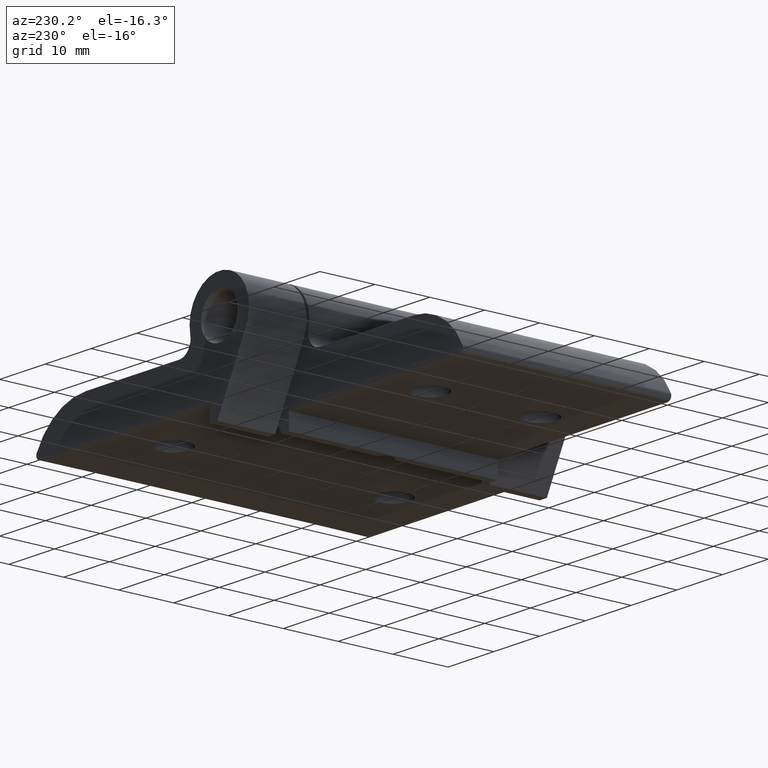
[diagram: clean part render]
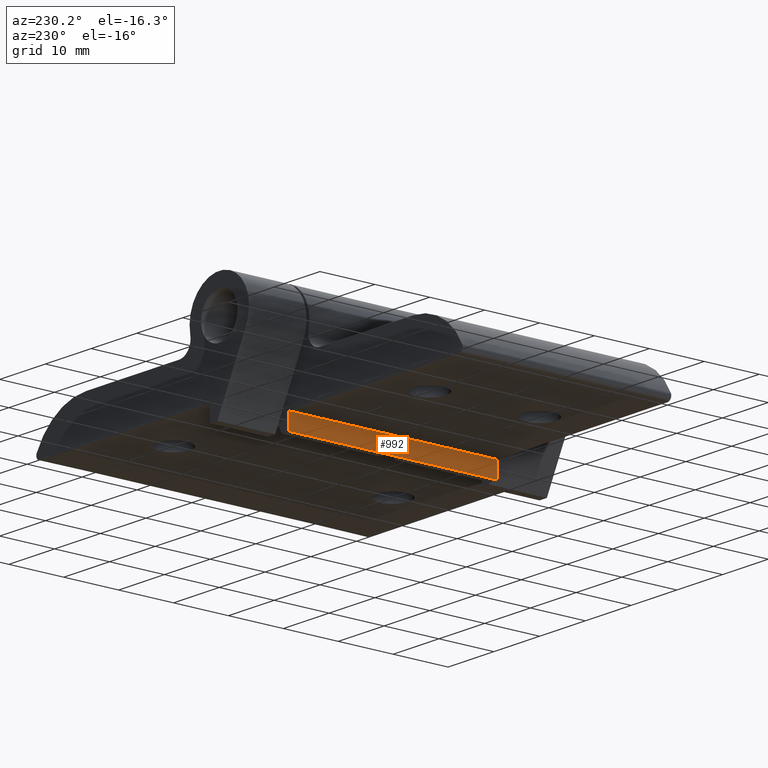
[diagram: same view with one face highlighted and labeled with its STEP entity id]
A machine part, auxiliary view. The second image highlights one B-rep face of the part: STEP entity #992.
In plain terms, the highlighted planar face has unit normal (-1, 0, -0).
Its self-contained STEP definition (entity closure, byte-faithful):
#84=PLANE('',#1156);
#149=FACE_OUTER_BOUND('',#209,.T.);
#209=EDGE_LOOP('',(#918,#919,#920,#921));
#262=LINE('',#1786,#331);
#273=LINE('',#1900,#342);
#277=LINE('',#1912,#346);
#282=LINE('',#1926,#351);
#331=VECTOR('',#1339,10.);
#342=VECTOR('',#1400,10.);
#346=VECTOR('',#1412,10.);
#351=VECTOR('',#1429,10.);
#475=VERTEX_POINT('',#1783);
#476=VERTEX_POINT('',#1785);
#501=VERTEX_POINT('',#1897);
#502=VERTEX_POINT('',#1899);
#604=EDGE_CURVE('',#476,#475,#262,.T.);
#638=EDGE_CURVE('',#501,#502,#273,.T.);
#645=EDGE_CURVE('',#476,#501,#277,.T.);
#652=EDGE_CURVE('',#502,#475,#282,.T.);
#918=ORIENTED_EDGE('',*,*,#604,.T.);
#919=ORIENTED_EDGE('',*,*,#652,.F.);
#920=ORIENTED_EDGE('',*,*,#638,.F.);
#921=ORIENTED_EDGE('',*,*,#645,.F.);
#992=ADVANCED_FACE('',(#149),#84,.T.);
#1156=AXIS2_PLACEMENT_3D('',#1925,#1427,#1428);
#1339=DIRECTION('',(0.,1.,0.));
#1400=DIRECTION('',(0.,1.,0.));
#1412=DIRECTION('',(1.85037170770859E-16,0.,1.));
#1427=DIRECTION('center_axis',(1.,0.,-1.85037170770859E-16));
#1428=DIRECTION('ref_axis',(-1.85037170770859E-16,0.,-1.));
#1429=DIRECTION('',(-1.85037170770859E-16,0.,-1.));
#1783=CARTESIAN_POINT('',(2.,19.,-15.3));
#1785=CARTESIAN_POINT('',(2.,-19.,-15.3));
#1786=CARTESIAN_POINT('',(2.,0.,-15.3));
#1897=CARTESIAN_POINT('',(2.,-19.,-12.3));
#1899=CARTESIAN_POINT('',(2.,19.,-12.3));
#1900=CARTESIAN_POINT('',(2.,0.,-12.3));
#1912=CARTESIAN_POINT('',(2.,-19.,-12.3));
#1925=CARTESIAN_POINT('Origin',(2.,0.,-12.3));
#1926=CARTESIAN_POINT('',(2.,19.,-12.3));